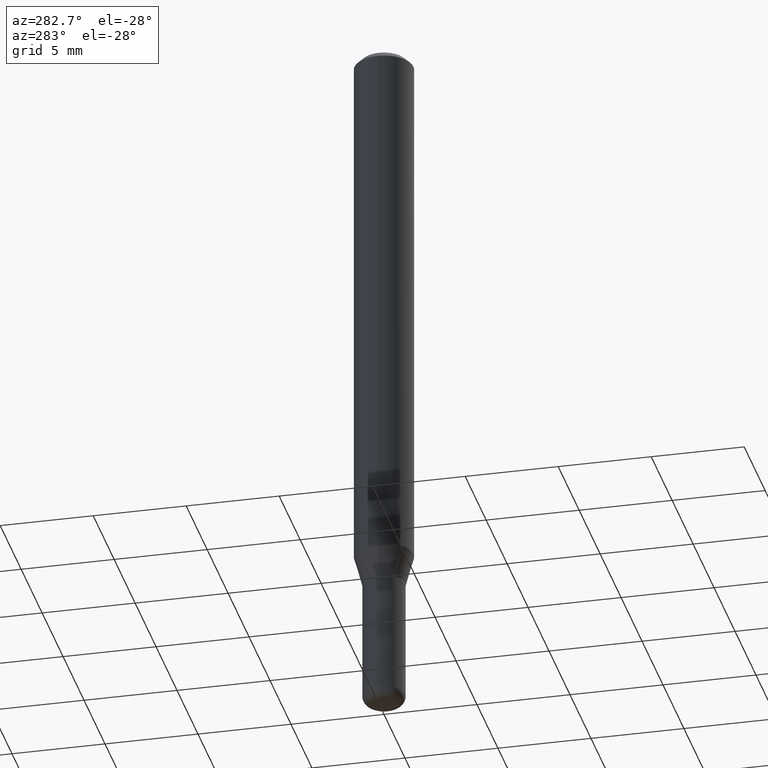
[diagram: clean part render]
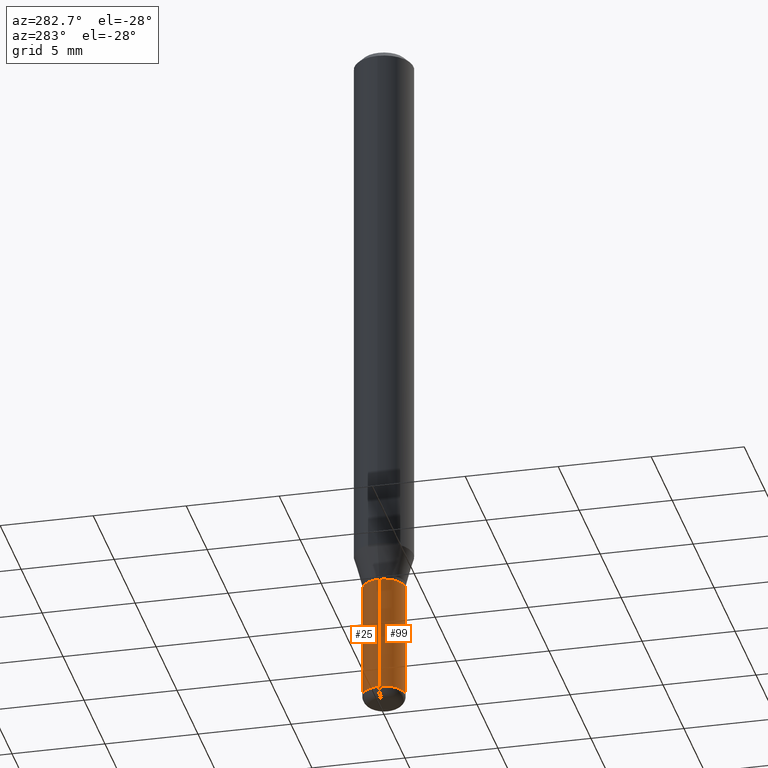
[diagram: same view with one multi-face feature highlighted, each face labeled with its STEP entity id]
A machine part, auxiliary view. The highlighted faces form ONE feature: a constant-radius fillet chain: 2 tangent blend faces with common blend radius 1.143 mm. The faces share edges in the B-rep.
Their STEP definitions:
[1] entity #99 (Cylinder):
#5 = CIRCLE ( 'NONE', #69, 0.04499999999999999833 ) ;
#40 = AXIS2_PLACEMENT_3D ( 'NONE', #379, #414, #297 ) ;
#43 = DIRECTION ( 'NONE',  ( -2.445468806185136877E-29, 3.491481338843145188E-15, 1.000000000000000000 ) ) ;
#55 = EDGE_LOOP ( 'NONE', ( #368, #94, #242, #480 ) ) ;
#69 = AXIS2_PLACEMENT_3D ( 'NONE', #251, #409, #201 ) ;
#84 = CARTESIAN_POINT ( 'NONE',  ( 0.04500000000000003303, -5.481625701983737354E-15, -1.479999999999999982 ) ) ;
#89 = VERTEX_POINT ( 'NONE', #97 ) ;
#93 = EDGE_CURVE ( 'NONE', #89, #470, #5, .T. ) ;
#94 = ORIENTED_EDGE ( 'NONE', *, *, #238, .T. ) ;
#97 = CARTESIAN_POINT ( 'NONE',  ( -0.04499999999999999833, -4.411212983040417053E-15, -1.230000000000000204 ) ) ;
#99 = ADVANCED_FACE ( 'NONE', ( #128 ), #447, .T. ) ;
#128 = FACE_OUTER_BOUND ( 'NONE', #55, .T. ) ;
#138 = DIRECTION ( 'NONE',  ( 1.000000000000000000, -6.982962677686267499E-15, 4.876176775795935793E-29 ) ) ;
#140 = DIRECTION ( 'NONE',  ( -2.445468806185136597E-29, 3.491481338843145583E-15, 1.000000000000000000 ) ) ;
#156 = VECTOR ( 'NONE', #432, 39.37007874015748143 ) ;
#186 = CARTESIAN_POINT ( 'NONE',  ( -0.04500000000000001221, 3.197442310920451704E-16, -2.213520790614708260E-30 ) ) ;
#188 = VECTOR ( 'NONE', #43, 39.37007874015748143 ) ;
#201 = DIRECTION ( 'NONE',  ( 1.000000000000000000, -6.982962677686269077E-15, 0.000000000000000000 ) ) ;
#205 = CARTESIAN_POINT ( 'NONE',  ( 0.04499999999999999833, -4.608755367272951648E-15, -1.230000000000000204 ) ) ;
#238 = EDGE_CURVE ( 'NONE', #324, #401, #510, .T. ) ;
#242 = ORIENTED_EDGE ( 'NONE', *, *, #294, .T. ) ;
#251 = CARTESIAN_POINT ( 'NONE',  ( 3.007926631607718216E-29, -4.294522046777069173E-15, -1.230000000000000204 ) ) ;
#294 = EDGE_CURVE ( 'NONE', #401, #470, #313, .T. ) ;
#297 = DIRECTION ( 'NONE',  ( 1.000000000000000000, -6.982962677686263555E-15, 0.000000000000000000 ) ) ;
#313 = LINE ( 'NONE', #389, #188 ) ;
#318 = EDGE_CURVE ( 'NONE', #324, #89, #355, .T. ) ;
#324 = VERTEX_POINT ( 'NONE', #471 ) ;
#354 = AXIS2_PLACEMENT_3D ( 'NONE', #424, #140, #138 ) ;
#355 = LINE ( 'NONE', #186, #156 ) ;
#368 = ORIENTED_EDGE ( 'NONE', *, *, #318, .F. ) ;
#379 = CARTESIAN_POINT ( 'NONE',  ( 3.619293833154002365E-29, -5.167392381487854879E-15, -1.479999999999999982 ) ) ;
#389 = CARTESIAN_POINT ( 'NONE',  ( 0.04500000000000001221, -3.142333204958821302E-16, 2.194279549108171667E-30 ) ) ;
#401 = VERTEX_POINT ( 'NONE', #84 ) ;
#409 = DIRECTION ( 'NONE',  ( -2.445468806185136597E-29, 3.491481338843145583E-15, 1.000000000000000000 ) ) ;
#414 = DIRECTION ( 'NONE',  ( -2.445468806185136597E-29, 3.491481338843145583E-15, 1.000000000000000000 ) ) ;
#424 = CARTESIAN_POINT ( 'NONE',  ( 0.000000000000000000, 0.000000000000000000, 0.000000000000000000 ) ) ;
#432 = DIRECTION ( 'NONE',  ( -2.445468806185136877E-29, 3.491481338843145188E-15, 1.000000000000000000 ) ) ;
#447 = CYLINDRICAL_SURFACE ( 'NONE', #354, 0.04500000000000001221 ) ;
#470 = VERTEX_POINT ( 'NONE', #205 ) ;
#471 = CARTESIAN_POINT ( 'NONE',  ( -0.04500000000000003303, -4.411212983040417053E-15, -1.479999999999999982 ) ) ;
#480 = ORIENTED_EDGE ( 'NONE', *, *, #93, .F. ) ;
#510 = CIRCLE ( 'NONE', #40, 0.04500000000000003303 ) ;
[2] entity #25 (Cylinder):
#17 = CYLINDRICAL_SURFACE ( 'NONE', #296, 0.04500000000000001221 ) ;
#25 = ADVANCED_FACE ( 'NONE', ( #125 ), #17, .T. ) ;
#30 = CIRCLE ( 'NONE', #277, 0.04499999999999999833 ) ;
#43 = DIRECTION ( 'NONE',  ( -2.445468806185136877E-29, 3.491481338843145188E-15, 1.000000000000000000 ) ) ;
#71 = EDGE_CURVE ( 'NONE', #470, #89, #30, .T. ) ;
#84 = CARTESIAN_POINT ( 'NONE',  ( 0.04500000000000003303, -5.481625701983737354E-15, -1.479999999999999982 ) ) ;
#89 = VERTEX_POINT ( 'NONE', #97 ) ;
#96 = DIRECTION ( 'NONE',  ( -2.445468806185136597E-29, 3.491481338843145583E-15, 1.000000000000000000 ) ) ;
#97 = CARTESIAN_POINT ( 'NONE',  ( -0.04499999999999999833, -4.411212983040417053E-15, -1.230000000000000204 ) ) ;
#125 = FACE_OUTER_BOUND ( 'NONE', #314, .T. ) ;
#156 = VECTOR ( 'NONE', #432, 39.37007874015748143 ) ;
#162 = EDGE_CURVE ( 'NONE', #401, #324, #167, .T. ) ;
#167 = CIRCLE ( 'NONE', #254, 0.04500000000000003303 ) ;
#183 = DIRECTION ( 'NONE',  ( 1.000000000000000000, -6.982962677686263555E-15, 0.000000000000000000 ) ) ;
#186 = CARTESIAN_POINT ( 'NONE',  ( -0.04500000000000001221, 3.197442310920451704E-16, -2.213520790614708260E-30 ) ) ;
#188 = VECTOR ( 'NONE', #43, 39.37007874015748143 ) ;
#204 = DIRECTION ( 'NONE',  ( 1.000000000000000000, -6.982962677686267499E-15, 4.876176775795935793E-29 ) ) ;
#205 = CARTESIAN_POINT ( 'NONE',  ( 0.04499999999999999833, -4.608755367272951648E-15, -1.230000000000000204 ) ) ;
#254 = AXIS2_PLACEMENT_3D ( 'NONE', #301, #295, #183 ) ;
#277 = AXIS2_PLACEMENT_3D ( 'NONE', #455, #96, #399 ) ;
#294 = EDGE_CURVE ( 'NONE', #401, #470, #313, .T. ) ;
#295 = DIRECTION ( 'NONE',  ( -2.445468806185136597E-29, 3.491481338843145583E-15, 1.000000000000000000 ) ) ;
#296 = AXIS2_PLACEMENT_3D ( 'NONE', #493, #329, #204 ) ;
#301 = CARTESIAN_POINT ( 'NONE',  ( 3.619293833154002365E-29, -5.167392381487854879E-15, -1.479999999999999982 ) ) ;
#313 = LINE ( 'NONE', #389, #188 ) ;
#314 = EDGE_LOOP ( 'NONE', ( #491, #422, #483, #392 ) ) ;
#318 = EDGE_CURVE ( 'NONE', #324, #89, #355, .T. ) ;
#324 = VERTEX_POINT ( 'NONE', #471 ) ;
#329 = DIRECTION ( 'NONE',  ( -2.445468806185136597E-29, 3.491481338843145583E-15, 1.000000000000000000 ) ) ;
#355 = LINE ( 'NONE', #186, #156 ) ;
#389 = CARTESIAN_POINT ( 'NONE',  ( 0.04500000000000001221, -3.142333204958821302E-16, 2.194279549108171667E-30 ) ) ;
#392 = ORIENTED_EDGE ( 'NONE', *, *, #294, .F. ) ;
#399 = DIRECTION ( 'NONE',  ( 1.000000000000000000, -6.982962677686269077E-15, 0.000000000000000000 ) ) ;
#401 = VERTEX_POINT ( 'NONE', #84 ) ;
#422 = ORIENTED_EDGE ( 'NONE', *, *, #318, .T. ) ;
#432 = DIRECTION ( 'NONE',  ( -2.445468806185136877E-29, 3.491481338843145188E-15, 1.000000000000000000 ) ) ;
#455 = CARTESIAN_POINT ( 'NONE',  ( 3.007926631607718216E-29, -4.294522046777069173E-15, -1.230000000000000204 ) ) ;
#470 = VERTEX_POINT ( 'NONE', #205 ) ;
#471 = CARTESIAN_POINT ( 'NONE',  ( -0.04500000000000003303, -4.411212983040417053E-15, -1.479999999999999982 ) ) ;
#483 = ORIENTED_EDGE ( 'NONE', *, *, #71, .F. ) ;
#491 = ORIENTED_EDGE ( 'NONE', *, *, #162, .T. ) ;
#493 = CARTESIAN_POINT ( 'NONE',  ( 0.000000000000000000, 0.000000000000000000, 0.000000000000000000 ) ) ;